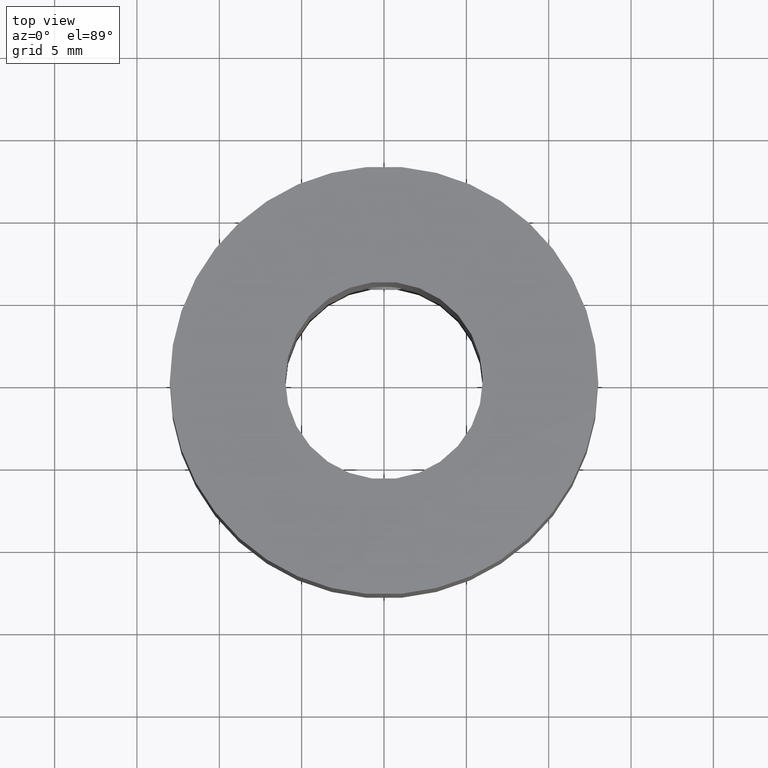
[diagram: clean part render]
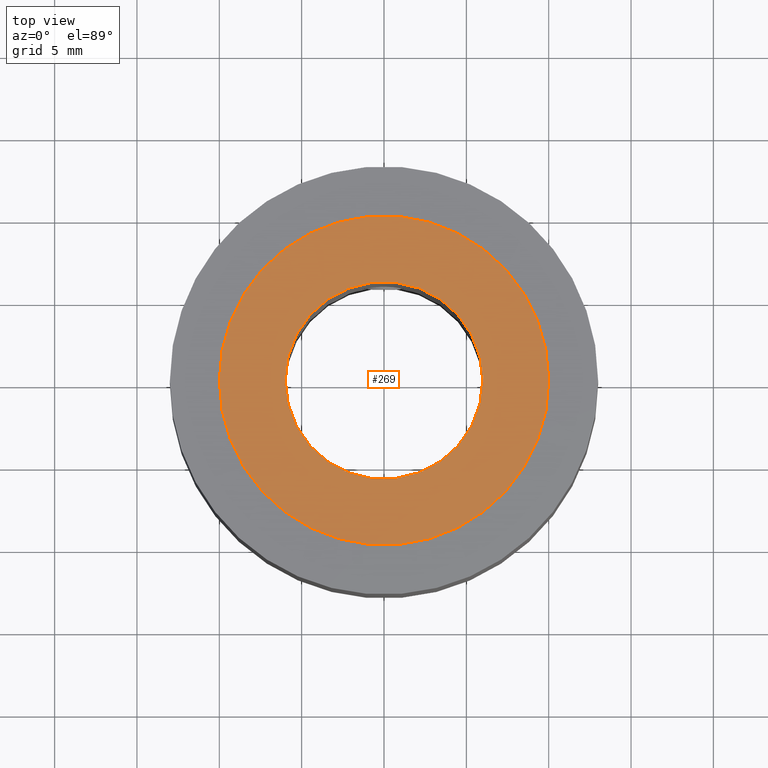
[diagram: same view with one face highlighted and labeled with its STEP entity id]
A machine part, top view. The second image highlights one B-rep face of the part: STEP entity #269.
In plain terms, the highlighted planar face has unit normal (0, 0, 1).
Its self-contained STEP definition (entity closure, byte-faithful):
#269 = ADVANCED_FACE( '', ( #326, #327 ), #328, .T. );
#326 = FACE_BOUND( '', #418, .T. );
#327 = FACE_OUTER_BOUND( '', #419, .T. );
#328 = PLANE( '', #420 );
#418 = EDGE_LOOP( '', ( #522 ) );
#419 = EDGE_LOOP( '', ( #523 ) );
#420 = AXIS2_PLACEMENT_3D( '', #524, #525, #526 );
#522 = ORIENTED_EDGE( '', *, *, #710, .F. );
#523 = ORIENTED_EDGE( '', *, *, #713, .T. );
#524 = CARTESIAN_POINT( '', ( 0.000000000000000, 0.000000000000000, 0.000000000000000 ) );
#525 = DIRECTION( '', ( 0.000000000000000, 0.000000000000000, 1.00000000000000 ) );
#526 = DIRECTION( '', ( 1.00000000000000, 0.000000000000000, 0.000000000000000 ) );
#710 = EDGE_CURVE( '', #774, #774, #775, .T. );
#713 = EDGE_CURVE( '', #780, #780, #781, .T. );
#774 = VERTEX_POINT( '', #1025 );
#775 = CIRCLE( '', #1026, 6.00000000000000 );
#780 = VERTEX_POINT( '', #1084 );
#781 = CIRCLE( '', #1085, 10.0000000000000 );
#1025 = CARTESIAN_POINT( '', ( 6.00000000000000, 0.000000000000000, 0.000000000000000 ) );
#1026 = AXIS2_PLACEMENT_3D( '', #1259, #1260, #1261 );
#1084 = CARTESIAN_POINT( '', ( 10.0000000000000, 0.000000000000000, 0.000000000000000 ) );
#1085 = AXIS2_PLACEMENT_3D( '', #1265, #1266, #1267 );
#1259 = CARTESIAN_POINT( '', ( 0.000000000000000, 0.000000000000000, 0.000000000000000 ) );
#1260 = DIRECTION( '', ( 0.000000000000000, 0.000000000000000, 1.00000000000000 ) );
#1261 = DIRECTION( '', ( 1.00000000000000, 0.000000000000000, 0.000000000000000 ) );
#1265 = CARTESIAN_POINT( '', ( 0.000000000000000, 0.000000000000000, 0.000000000000000 ) );
#1266 = DIRECTION( '', ( 0.000000000000000, 0.000000000000000, 1.00000000000000 ) );
#1267 = DIRECTION( '', ( 1.00000000000000, 0.000000000000000, 0.000000000000000 ) );